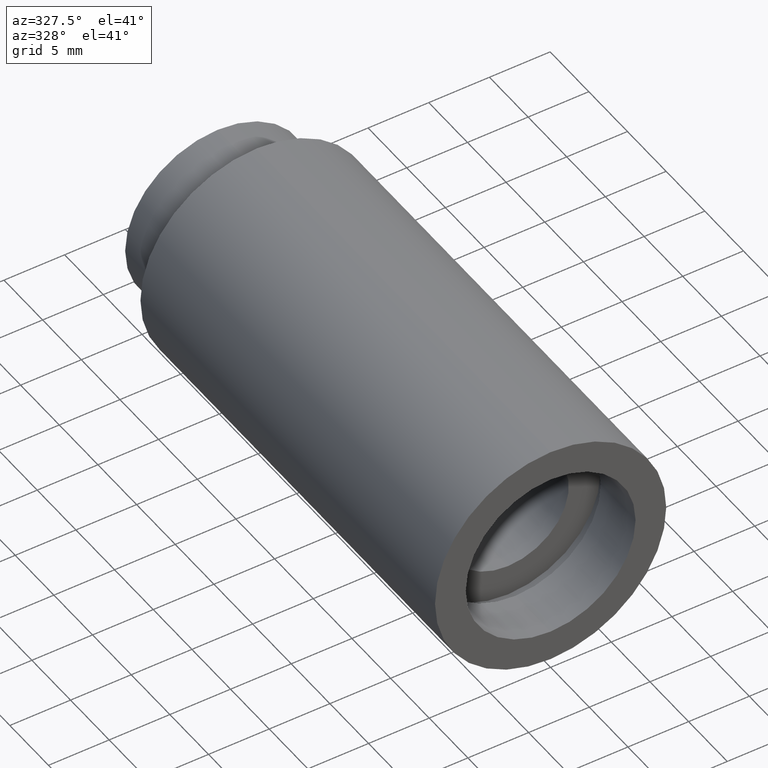
[diagram: clean part render]
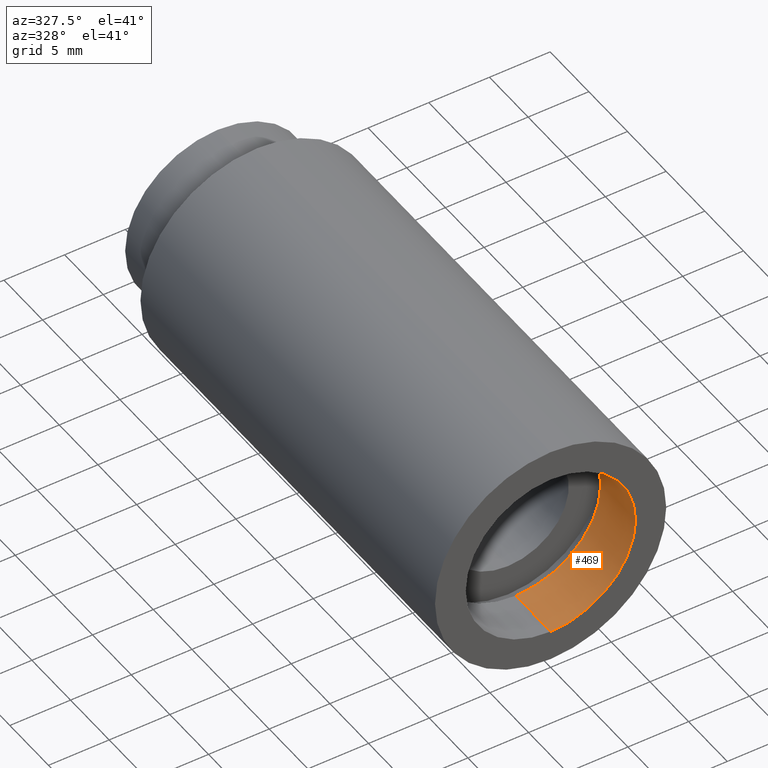
[diagram: same view with one face highlighted and labeled with its STEP entity id]
A machine part, auxiliary view. The second image highlights one B-rep face of the part: STEP entity #469.
In plain terms, the highlighted cylindrical surface (partial cylindrical patch) has radius 7 mm, axis along (-0, 1, -0).
Its self-contained STEP definition (entity closure, byte-faithful):
#6 = LINE ( 'NONE', #364, #163 ) ;
#19 = LINE ( 'NONE', #600, #408 ) ;
#27 = CYLINDRICAL_SURFACE ( 'NONE', #449, 7.000000000000020400 ) ;
#29 = VERTEX_POINT ( 'NONE', #598 ) ;
#52 = ORIENTED_EDGE ( 'NONE', *, *, #81, .F. ) ;
#81 = EDGE_CURVE ( 'NONE', #343, #503, #493, .T. ) ;
#82 = CARTESIAN_POINT ( 'NONE',  ( 0.0000000000000000000, 161.3761669434274500, 0.0000000000000000000 ) ) ;
#99 = CARTESIAN_POINT ( 'NONE',  ( 0.0000000000000000000, -2.775557561562891400E-014, 7.000000000000019500 ) ) ;
#114 = ORIENTED_EDGE ( 'NONE', *, *, #143, .F. ) ;
#143 = EDGE_CURVE ( 'NONE', #503, #29, #19, .T. ) ;
#148 = EDGE_CURVE ( 'NONE', #343, #508, #6, .T. ) ;
#159 = ORIENTED_EDGE ( 'NONE', *, *, #148, .T. ) ;
#163 = VECTOR ( 'NONE', #223, 1000.000000000000000 ) ;
#165 = DIRECTION ( 'NONE',  ( -0.0000000000000000000, 1.000000000000000000, -0.0000000000000000000 ) ) ;
#169 = DIRECTION ( 'NONE',  ( -0.0000000000000000000, 1.000000000000000000, -0.0000000000000000000 ) ) ;
#223 = DIRECTION ( 'NONE',  ( -0.0000000000000000000, 1.000000000000000000, -0.0000000000000000000 ) ) ;
#260 = DIRECTION ( 'NONE',  ( 0.0000000000000000000, 0.0000000000000000000, 1.000000000000000000 ) ) ;
#313 = FACE_OUTER_BOUND ( 'NONE', #373, .T. ) ;
#343 = VERTEX_POINT ( 'NONE', #99 ) ;
#350 = ORIENTED_EDGE ( 'NONE', *, *, #423, .T. ) ;
#364 = CARTESIAN_POINT ( 'NONE',  ( 0.0000000000000000000, 161.3761669434274500, 7.000000000000020400 ) ) ;
#373 = EDGE_LOOP ( 'NONE', ( #114, #52, #159, #350 ) ) ;
#408 = VECTOR ( 'NONE', #510, 1000.000000000000000 ) ;
#409 = DIRECTION ( 'NONE',  ( 0.0000000000000000000, 0.0000000000000000000, 1.000000000000000000 ) ) ;
#416 = CARTESIAN_POINT ( 'NONE',  ( 0.0000000000000000000, 4.499999999999976000, 7.000000000000020400 ) ) ;
#417 = CIRCLE ( 'NONE', #587, 7.000000000000020400 ) ;
#423 = EDGE_CURVE ( 'NONE', #508, #29, #417, .T. ) ;
#449 = AXIS2_PLACEMENT_3D ( 'NONE', #82, #169, #513 ) ;
#469 = ADVANCED_FACE ( 'NONE', ( #313 ), #27, .F. ) ;
#477 = AXIS2_PLACEMENT_3D ( 'NONE', #559, #165, #409 ) ;
#493 = CIRCLE ( 'NONE', #477, 7.000000000000019500 ) ;
#503 = VERTEX_POINT ( 'NONE', #610 ) ;
#508 = VERTEX_POINT ( 'NONE', #416 ) ;
#510 = DIRECTION ( 'NONE',  ( -0.0000000000000000000, 1.000000000000000000, -0.0000000000000000000 ) ) ;
#513 = DIRECTION ( 'NONE',  ( 0.0000000000000000000, 0.0000000000000000000, 1.000000000000000000 ) ) ;
#546 = DIRECTION ( 'NONE',  ( -0.0000000000000000000, 1.000000000000000000, -0.0000000000000000000 ) ) ;
#559 = CARTESIAN_POINT ( 'NONE',  ( 0.0000000000000000000, -2.775557561562891400E-014, 0.0000000000000000000 ) ) ;
#587 = AXIS2_PLACEMENT_3D ( 'NONE', #593, #546, #260 ) ;
#593 = CARTESIAN_POINT ( 'NONE',  ( 0.0000000000000000000, 4.499999999999976000, 0.0000000000000000000 ) ) ;
#598 = CARTESIAN_POINT ( 'NONE',  ( 8.572527594031496900E-016, 4.499999999999976000, -7.000000000000020400 ) ) ;
#600 = CARTESIAN_POINT ( 'NONE',  ( 8.572527594031496900E-016, 161.3761669434274500, -7.000000000000020400 ) ) ;
#610 = CARTESIAN_POINT ( 'NONE',  ( 8.572527594031495900E-016, -2.775557561562891400E-014, -7.000000000000019500 ) ) ;